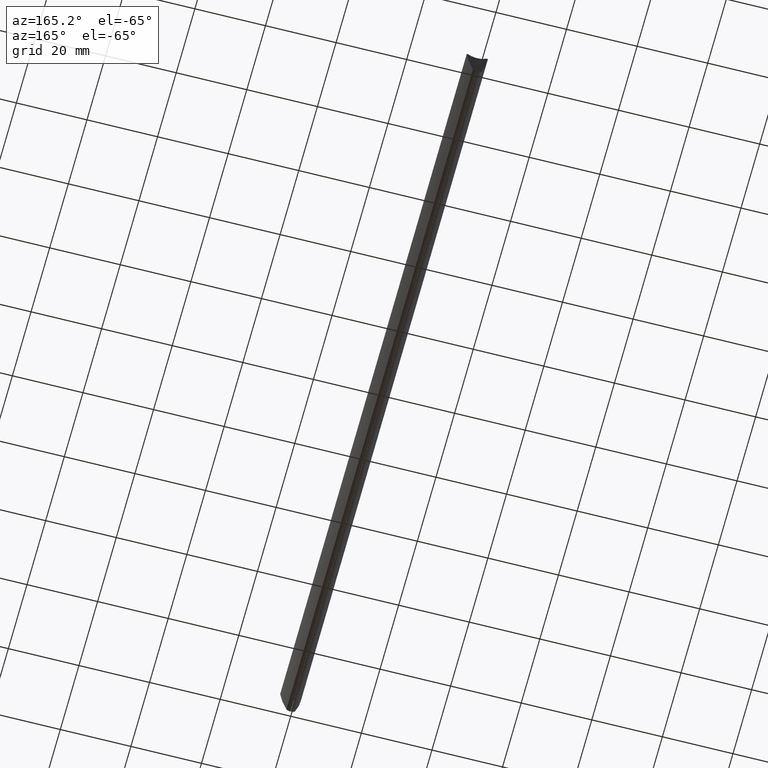
[diagram: clean part render]
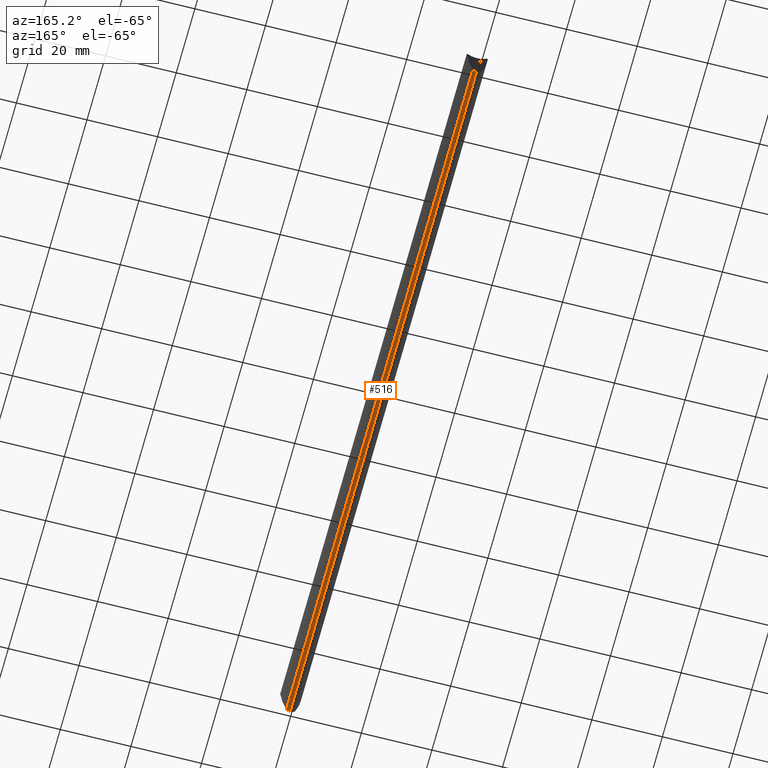
[diagram: same view with one face highlighted and labeled with its STEP entity id]
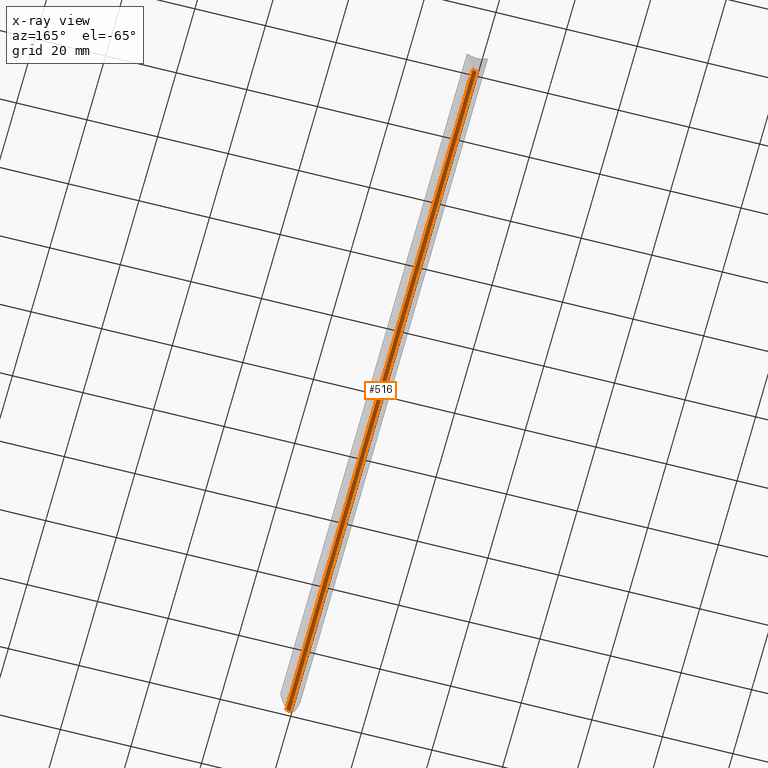
[diagram: x-ray of the same camera — body ghosted, the highlighted face saturated]
A machine part, auxiliary view. The second image highlights one B-rep face of the part: STEP entity #516.
The next image is the same camera in x-ray: the body ghosted, the highlighted face saturated — about 0% of this face is hidden behind the body in this view.
In plain terms, the highlighted face is a freeform B-spline surface patch.
Its self-contained STEP definition (entity closure, byte-faithful):
#111=CARTESIAN_POINT('',(0.187334978132994,0.0,-8.790605270910961));
#112=VERTEX_POINT('',#111);
#122=CARTESIAN_POINT('',(1.237973647619502,0.0,-7.900937391492809));
#123=VERTEX_POINT('',#122);
#124=CARTESIAN_POINT('',(0.187334978132991,0.0,-8.790605270910945));
#125=CARTESIAN_POINT('',(0.990316610488731,0.0,-8.673672060989876));
#126=CARTESIAN_POINT('',(1.237973647619503,0.0,-7.900937391492811));
#134=(BOUNDED_CURVE()B_SPLINE_CURVE(2,(#124,#125,#126),.UNSPECIFIED.,.F.,.U.)CURVE()GEOMETRIC_REPRESENTATION_ITEM()QUASI_UNIFORM_CURVE()RATIONAL_B_SPLINE_CURVE((1.0,0.848305782003044,1.0))REPRESENTATION_ITEM(''));
#135=EDGE_CURVE('',#112,#123,#134,.T.);
#255=CARTESIAN_POINT('',(1.237973647619502,200.0,-7.900937391492809));
#256=VERTEX_POINT('',#255);
#270=CARTESIAN_POINT('',(0.187334978132994,200.0,-8.790605270910961));
#271=VERTEX_POINT('',#270);
#272=CARTESIAN_POINT('',(0.187334978132991,200.0,-8.790605270910945));
#273=CARTESIAN_POINT('',(0.990316610488731,199.999999999999970,-8.673672060989876));
#274=CARTESIAN_POINT('',(1.237973647619503,200.0,-7.900937391492811));
#282=(BOUNDED_CURVE()B_SPLINE_CURVE(2,(#272,#273,#274),.UNSPECIFIED.,.F.,.U.)CURVE()GEOMETRIC_REPRESENTATION_ITEM()QUASI_UNIFORM_CURVE()RATIONAL_B_SPLINE_CURVE((1.0,0.848305782003044,1.0))REPRESENTATION_ITEM(''));
#283=EDGE_CURVE('',#271,#256,#282,.T.);
#482=CARTESIAN_POINT('',(1.237973647619502,200.0,-7.900937391492809));
#483=CARTESIAN_POINT('',(1.237973647619502,0.0,-7.900937391492809));
#484=QUASI_UNIFORM_CURVE('',1,(#482,#483),.UNSPECIFIED.,.F.,.U.);
#485=EDGE_CURVE('',#256,#123,#484,.T.);
#492=CARTESIAN_POINT('',(1.248289251336863,205.0,-7.867180736911264));
#493=CARTESIAN_POINT('',(1.248289251336863,-5.125000000000000,-7.867180736911264));
#494=CARTESIAN_POINT('',(1.000985351927642,205.000000000000090,-8.717596734362795));
#495=CARTESIAN_POINT('',(1.000985351927642,-5.125000000000001,-8.717596734362795));
#496=CARTESIAN_POINT('',(0.119062905276863,205.000000000000030,-8.798710145571967));
#497=CARTESIAN_POINT('',(0.119062905276863,-5.124999999999999,-8.798710145571967));
#505=(BOUNDED_SURFACE()B_SPLINE_SURFACE(1,2,((#492,#494,#496),(#493,#495,#497)),.UNSPECIFIED.,.F.,.F.,.U.)B_SPLINE_SURFACE_WITH_KNOTS((2,2),(3,3),(0.0,210.125000000000110),(0.0,0.977730943921767),.UNSPECIFIED.)GEOMETRIC_REPRESENTATION_ITEM()RATIONAL_B_SPLINE_SURFACE(((1.0,0.823179357556354,0.992124742395267),(1.0,0.823179357556354,0.992124742395267)))REPRESENTATION_ITEM('')SURFACE());
#506=ORIENTED_EDGE('',*,*,#135,.F.);
#507=CARTESIAN_POINT('',(0.187334978132994,200.0,-8.790605270910961));
#508=CARTESIAN_POINT('',(0.187334978132994,0.0,-8.790605270910961));
#509=QUASI_UNIFORM_CURVE('',1,(#507,#508),.UNSPECIFIED.,.F.,.U.);
#510=EDGE_CURVE('',#271,#112,#509,.T.);
#511=ORIENTED_EDGE('',*,*,#510,.F.);
#512=ORIENTED_EDGE('',*,*,#283,.T.);
#513=ORIENTED_EDGE('',*,*,#485,.T.);
#514=EDGE_LOOP('',(#506,#511,#512,#513));
#515=FACE_OUTER_BOUND('',#514,.T.);
#516=ADVANCED_FACE('',(#515),#505,.T.);